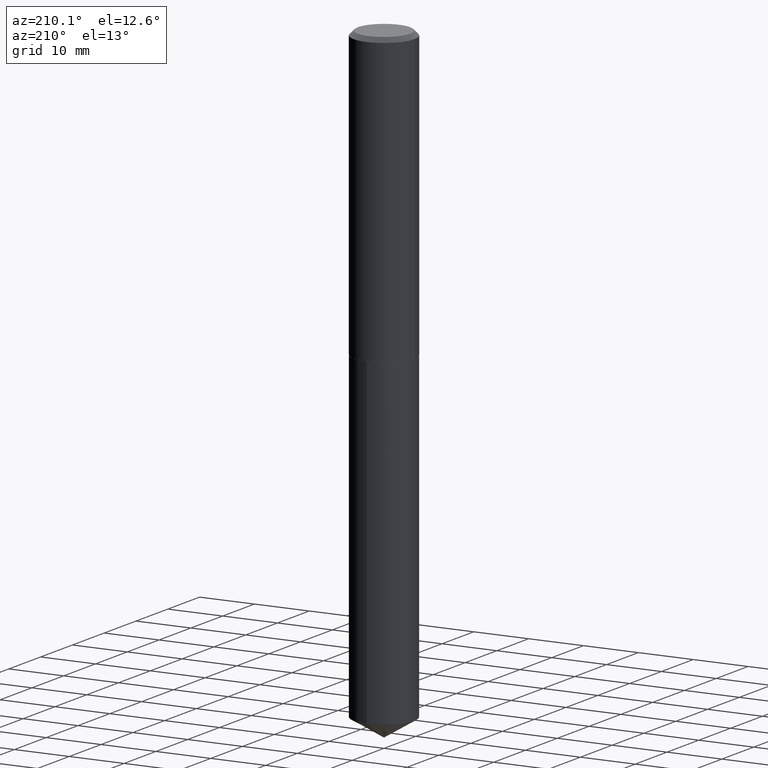
[diagram: clean part render]
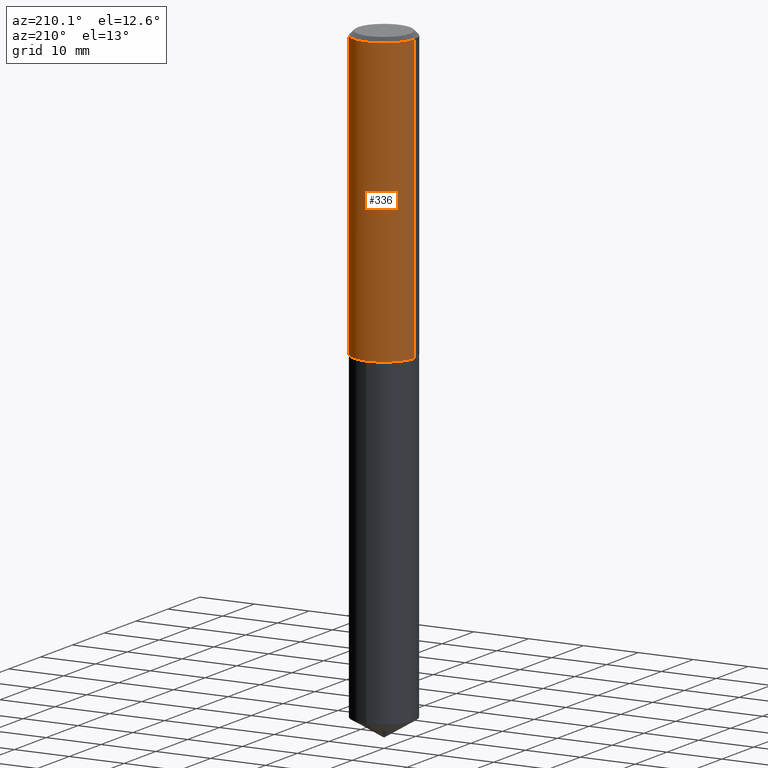
[diagram: same view with one face highlighted and labeled with its STEP entity id]
A machine part, auxiliary view. The second image highlights one B-rep face of the part: STEP entity #336.
In plain terms, the highlighted cylindrical surface (edge-blend (fillet) strip) has radius 5.5563 mm, axis along (-0, 0, 1).
Its self-contained STEP definition (entity closure, byte-faithful):
#3 = DIRECTION ( 'NONE',  ( 1.000000000000000000, -6.982962677686266711E-15, 0.000000000000000000 ) ) ;
#4 = EDGE_CURVE ( 'NONE', #21, #66, #49, .T. ) ;
#8 = DIRECTION ( 'NONE',  ( -2.445468806185136597E-29, 3.491481338843145583E-15, 1.000000000000000000 ) ) ;
#21 = VERTEX_POINT ( 'NONE', #141 ) ;
#24 = DIRECTION ( 'NONE',  ( -2.445468806185136877E-29, 3.491481338843145188E-15, 1.000000000000000000 ) ) ;
#37 = ORIENTED_EDGE ( 'NONE', *, *, #263, .T. ) ;
#38 = AXIS2_PLACEMENT_3D ( 'NONE', #246, #8, #3 ) ;
#49 = LINE ( 'NONE', #79, #234 ) ;
#50 = EDGE_CURVE ( 'NONE', #213, #293, #352, .T. ) ;
#56 = EDGE_LOOP ( 'NONE', ( #37, #328, #69, #181 ) ) ;
#66 = VERTEX_POINT ( 'NONE', #91 ) ;
#69 = ORIENTED_EDGE ( 'NONE', *, *, #172, .F. ) ;
#79 = CARTESIAN_POINT ( 'NONE',  ( 0.2187500000000000833, -1.527523085743871435E-15, 1.066663669705361305E-29 ) ) ;
#84 = DIRECTION ( 'NONE',  ( -2.445468806185136877E-29, 3.491481338843145188E-15, 1.000000000000000000 ) ) ;
#91 = CARTESIAN_POINT ( 'NONE',  ( 0.2187500000000000000, -1.636631877582719746E-15, -0.03125000000000019429 ) ) ;
#96 = CARTESIAN_POINT ( 'NONE',  ( 5.042556678353752550E-29, -7.199434520694567863E-15, -2.062000000000000277 ) ) ;
#102 = DIRECTION ( 'NONE',  ( 1.000000000000000000, -6.982962677686265133E-15, 0.000000000000000000 ) ) ;
#141 = CARTESIAN_POINT ( 'NONE',  ( 0.2187500000000002220, -8.726957606438439495E-15, -2.062000000000000277 ) ) ;
#172 = EDGE_CURVE ( 'NONE', #66, #293, #251, .T. ) ;
#181 = ORIENTED_EDGE ( 'NONE', *, *, #4, .F. ) ;
#213 = VERTEX_POINT ( 'NONE', #217 ) ;
#217 = CARTESIAN_POINT ( 'NONE',  ( -0.2187500000000002220, -5.645122286219346340E-15, -2.062000000000000277 ) ) ;
#230 = FACE_OUTER_BOUND ( 'NONE', #56, .T. ) ;
#234 = VECTOR ( 'NONE', #24, 39.37007874015748143 ) ;
#246 = CARTESIAN_POINT ( 'NONE',  ( 7.642090019328599159E-31, -1.091087918388489774E-16, -0.03125000000000019429 ) ) ;
#251 = CIRCLE ( 'NONE', #38, 0.2187500000000000000 ) ;
#253 = DIRECTION ( 'NONE',  ( -2.445468806185136597E-29, 3.491481338843145583E-15, 1.000000000000000000 ) ) ;
#258 = CARTESIAN_POINT ( 'NONE',  ( -0.2187500000000000000, -2.099959421791488142E-15, -0.03125000000000019429 ) ) ;
#263 = EDGE_CURVE ( 'NONE', #21, #213, #345, .T. ) ;
#286 = CARTESIAN_POINT ( 'NONE',  ( 0.000000000000000000, 0.000000000000000000, 0.000000000000000000 ) ) ;
#293 = VERTEX_POINT ( 'NONE', #258 ) ;
#308 = DIRECTION ( 'NONE',  ( 1.000000000000000000, -6.982962677686266711E-15, 4.876176775795935793E-29 ) ) ;
#312 = AXIS2_PLACEMENT_3D ( 'NONE', #96, #314, #102 ) ;
#314 = DIRECTION ( 'NONE',  ( -2.445468806185136597E-29, 3.491481338843145583E-15, 1.000000000000000000 ) ) ;
#322 = CARTESIAN_POINT ( 'NONE',  ( -0.2187500000000000833, 1.554312234475219748E-15, -1.076017050993261043E-29 ) ) ;
#327 = VECTOR ( 'NONE', #84, 39.37007874015748143 ) ;
#328 = ORIENTED_EDGE ( 'NONE', *, *, #50, .T. ) ;
#336 = ADVANCED_FACE ( 'NONE', ( #230 ), #339, .T. ) ;
#339 = CYLINDRICAL_SURFACE ( 'NONE', #361, 0.2187500000000000833 ) ;
#345 = CIRCLE ( 'NONE', #312, 0.2187500000000002220 ) ;
#352 = LINE ( 'NONE', #322, #327 ) ;
#361 = AXIS2_PLACEMENT_3D ( 'NONE', #286, #253, #308 ) ;